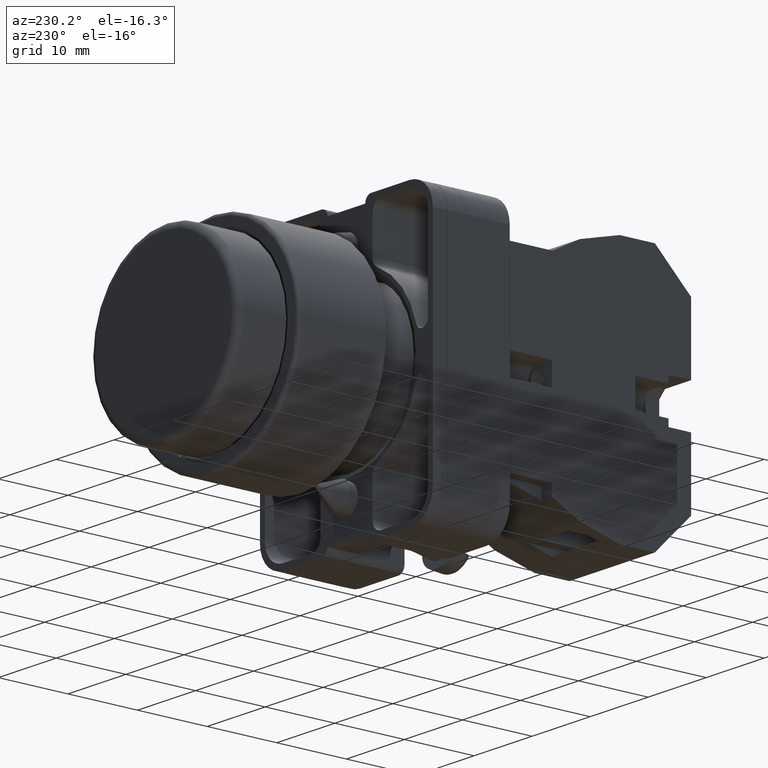
[diagram: clean part render]
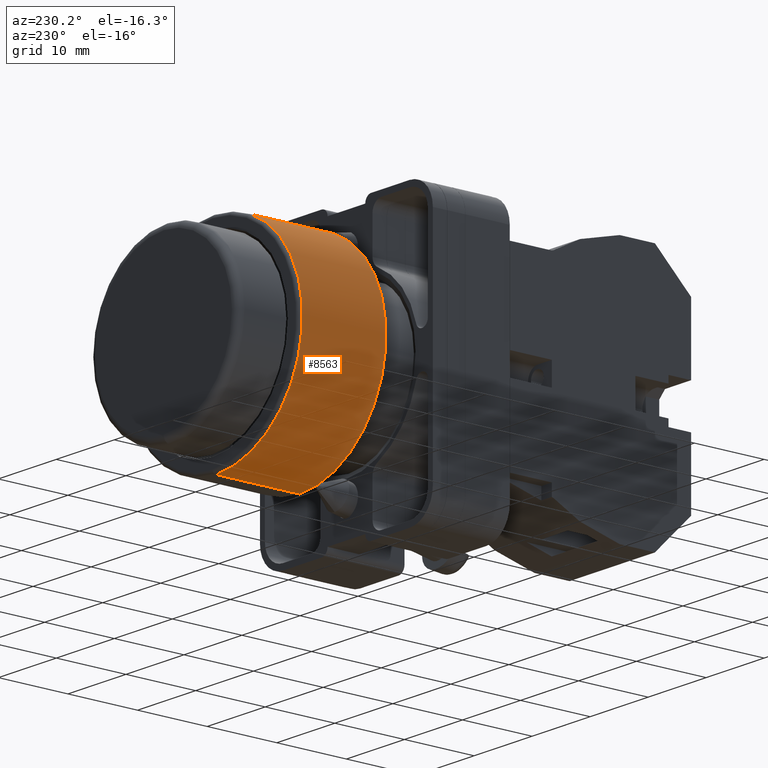
[diagram: same view with one face highlighted and labeled with its STEP entity id]
A machine part, auxiliary view. The second image highlights one B-rep face of the part: STEP entity #8563.
In plain terms, the highlighted cylindrical surface (partial cylindrical patch) has radius 14.925 mm, axis along (-0, -1, -0).
Its self-contained STEP definition (entity closure, byte-faithful):
#133 = DIRECTION ( 'NONE',  ( -0.0000000000000000000, -1.000000000000000000, -0.0000000000000000000 ) ) ;
#652 = DIRECTION ( 'NONE',  ( 0.0000000000000000000, 0.0000000000000000000, -1.000000000000000000 ) ) ;
#740 = VERTEX_POINT ( 'NONE', #4137 ) ;
#1077 = CARTESIAN_POINT ( 'NONE',  ( 0.0000000000000000000, 3.673790347906964000, -0.5875984251968504600 ) ) ;
#1141 = DIRECTION ( 'NONE',  ( 0.0000000000000000000, 1.000000000000000000, 0.0000000000000000000 ) ) ;
#1427 = DIRECTION ( 'NONE',  ( -0.0000000000000000000, -1.000000000000000000, -0.0000000000000000000 ) ) ;
#1616 = AXIS2_PLACEMENT_3D ( 'NONE', #6619, #8660, #2723 ) ;
#2192 = AXIS2_PLACEMENT_3D ( 'NONE', #12501, #6567, #652 ) ;
#2549 = CARTESIAN_POINT ( 'NONE',  ( 7.196005306013484500E-017, 0.9212598425196851800, 0.5875984251968504600 ) ) ;
#2723 = DIRECTION ( 'NONE',  ( 0.0000000000000000000, 0.0000000000000000000, -1.000000000000000000 ) ) ;
#3364 = EDGE_LOOP ( 'NONE', ( #12527, #6672, #5229, #9863 ) ) ;
#3385 = CARTESIAN_POINT ( 'NONE',  ( 7.196005306013484500E-017, 3.673790347906964000, 0.5875984251968504600 ) ) ;
#3502 = VECTOR ( 'NONE', #133, 39.37007874015748100 ) ;
#3949 = AXIS2_PLACEMENT_3D ( 'NONE', #7066, #1141, #8061 ) ;
#4137 = CARTESIAN_POINT ( 'NONE',  ( 0.0000000000000000000, 0.4484251968503937300, -0.5875984251968504600 ) ) ;
#4607 = VERTEX_POINT ( 'NONE', #8170 ) ;
#4758 = VECTOR ( 'NONE', #1427, 39.37007874015748100 ) ;
#5229 = ORIENTED_EDGE ( 'NONE', *, *, #9064, .T. ) ;
#5244 = VERTEX_POINT ( 'NONE', #2549 ) ;
#6126 = LINE ( 'NONE', #1077, #3502 ) ;
#6143 = CIRCLE ( 'NONE', #2192, 0.5875984251968504600 ) ;
#6448 = CYLINDRICAL_SURFACE ( 'NONE', #1616, 0.5875984251968504600 ) ;
#6567 = DIRECTION ( 'NONE',  ( 0.0000000000000000000, -1.000000000000000000, 0.0000000000000000000 ) ) ;
#6619 = CARTESIAN_POINT ( 'NONE',  ( 0.0000000000000000000, 3.673790347906964000, 0.0000000000000000000 ) ) ;
#6672 = ORIENTED_EDGE ( 'NONE', *, *, #7363, .T. ) ;
#7066 = CARTESIAN_POINT ( 'NONE',  ( 0.0000000000000000000, 0.4484251968503937300, 0.0000000000000000000 ) ) ;
#7244 = EDGE_CURVE ( 'NONE', #5244, #4607, #10007, .T. ) ;
#7363 = EDGE_CURVE ( 'NONE', #5244, #11244, #6143, .T. ) ;
#8061 = DIRECTION ( 'NONE',  ( 0.0000000000000000000, 0.0000000000000000000, 1.000000000000000000 ) ) ;
#8170 = CARTESIAN_POINT ( 'NONE',  ( 7.196005306013484500E-017, 0.4484251968503937300, 0.5875984251968504600 ) ) ;
#8563 = ADVANCED_FACE ( 'NONE', ( #11705 ), #6448, .T. ) ;
#8660 = DIRECTION ( 'NONE',  ( -0.0000000000000000000, -1.000000000000000000, -0.0000000000000000000 ) ) ;
#8923 = CARTESIAN_POINT ( 'NONE',  ( 0.0000000000000000000, 0.9212598425196851800, -0.5875984251968504600 ) ) ;
#9064 = EDGE_CURVE ( 'NONE', #11244, #740, #6126, .T. ) ;
#9137 = CIRCLE ( 'NONE', #3949, 0.5875984251968504600 ) ;
#9863 = ORIENTED_EDGE ( 'NONE', *, *, #12732, .T. ) ;
#10007 = LINE ( 'NONE', #3385, #4758 ) ;
#11244 = VERTEX_POINT ( 'NONE', #8923 ) ;
#11705 = FACE_OUTER_BOUND ( 'NONE', #3364, .T. ) ;
#12501 = CARTESIAN_POINT ( 'NONE',  ( 0.0000000000000000000, 0.9212598425196851800, 0.0000000000000000000 ) ) ;
#12527 = ORIENTED_EDGE ( 'NONE', *, *, #7244, .F. ) ;
#12732 = EDGE_CURVE ( 'NONE', #740, #4607, #9137, .T. ) ;